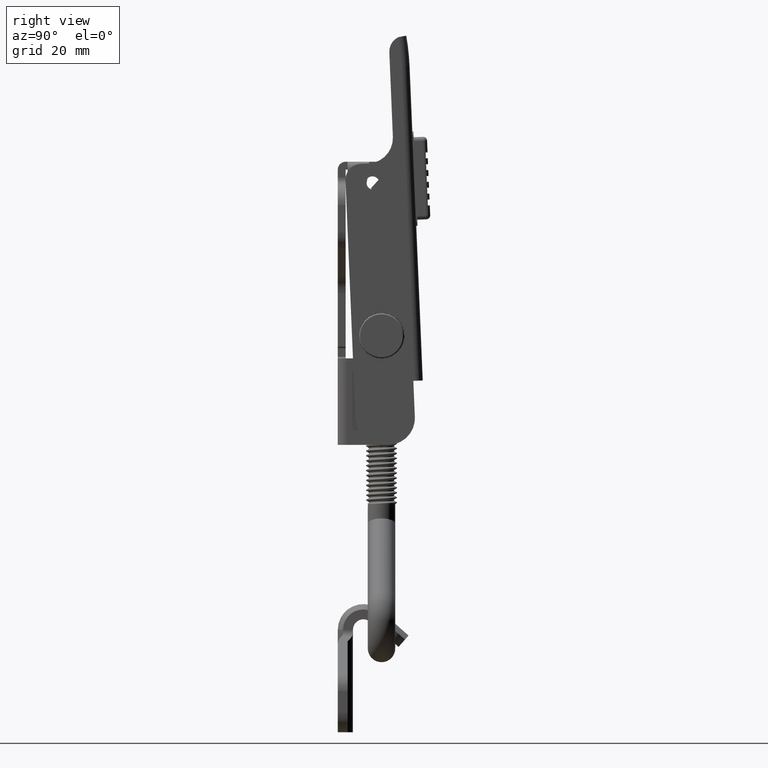
[diagram: clean part render]
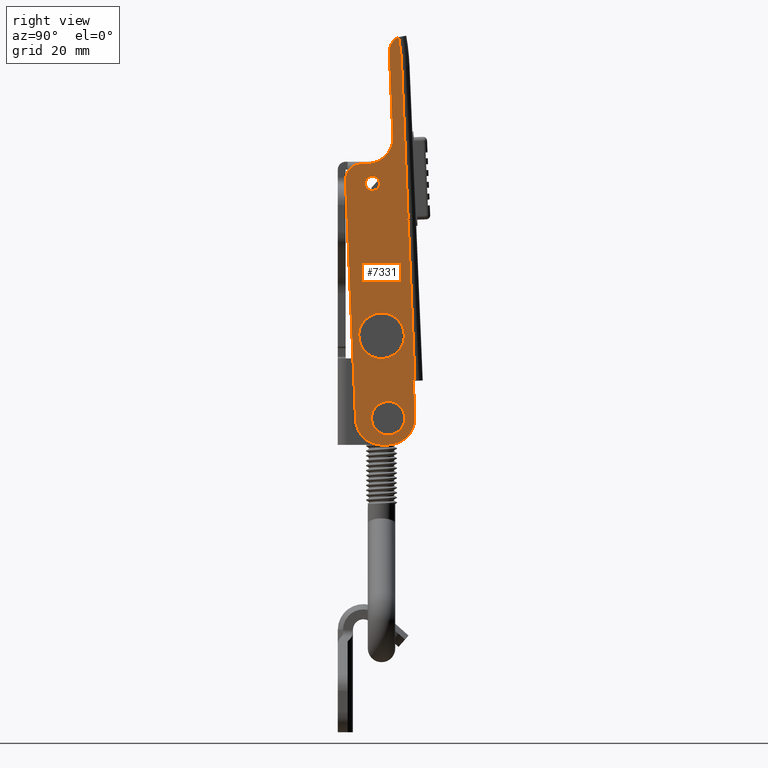
[diagram: same view with one face highlighted and labeled with its STEP entity id]
A machine part, right view. The second image highlights one B-rep face of the part: STEP entity #7331.
In plain terms, the highlighted planar face has unit normal (1, -0, 0).
Its self-contained STEP definition (entity closure, byte-faithful):
#555=PLANE('',#7910);
#956=LINE('',#33305,#1490);
#960=LINE('',#33317,#1494);
#965=LINE('',#33331,#1499);
#967=LINE('',#33337,#1501);
#968=LINE('',#33339,#1502);
#969=LINE('',#33341,#1503);
#970=LINE('',#33346,#1504);
#1490=VECTOR('',#9384,60.9);
#1494=VECTOR('',#9396,1.5);
#1499=VECTOR('',#9409,2.00000000000002);
#1501=VECTOR('',#9415,9.20000000000001);
#1502=VECTOR('',#9416,0.400000000000002);
#1503=VECTOR('',#9417,80.);
#1504=VECTOR('',#9422,21.5919007564523);
#1722=FACE_BOUND('',#2410,.T.);
#1723=FACE_BOUND('',#2411,.T.);
#1724=FACE_BOUND('',#2412,.T.);
#1997=FACE_OUTER_BOUND('',#2409,.T.);
#2409=EDGE_LOOP('',(#6224,#6225,#6226,#6227,#6228,#6229,#6230,#6231,#6232,
#6233,#6234,#6235,#6236));
#2410=EDGE_LOOP('',(#6237));
#2411=EDGE_LOOP('',(#6238));
#2412=EDGE_LOOP('',(#6239));
#2770=CIRCLE('',#7899,4.00000000000001);
#2772=CIRCLE('',#7903,6.8);
#2774=CIRCLE('',#7907,6.50000000000001);
#2776=CIRCLE('',#7911,6.8);
#2777=CIRCLE('',#7912,56.4999999999998);
#2778=CIRCLE('',#7913,4.);
#2779=CIRCLE('',#7914,5.8);
#2780=CIRCLE('',#7915,1.8);
#2781=CIRCLE('',#7916,3.6);
#3431=VERTEX_POINT('',#33295);
#3432=VERTEX_POINT('',#33296);
#3435=VERTEX_POINT('',#33304);
#3437=VERTEX_POINT('',#33310);
#3439=VERTEX_POINT('',#33316);
#3441=VERTEX_POINT('',#33322);
#3442=VERTEX_POINT('',#33323);
#3445=VERTEX_POINT('',#33334);
#3446=VERTEX_POINT('',#33336);
#3447=VERTEX_POINT('',#33338);
#3448=VERTEX_POINT('',#33340);
#3449=VERTEX_POINT('',#33342);
#3450=VERTEX_POINT('',#33344);
#3451=VERTEX_POINT('',#33347);
#3452=VERTEX_POINT('',#33349);
#3453=VERTEX_POINT('',#33351);
#4401=EDGE_CURVE('',#3431,#3432,#2770,.T.);
#4405=EDGE_CURVE('',#3435,#3431,#956,.T.);
#4408=EDGE_CURVE('',#3437,#3435,#2772,.T.);
#4411=EDGE_CURVE('',#3439,#3437,#960,.T.);
#4414=EDGE_CURVE('',#3441,#3442,#2774,.T.);
#4418=EDGE_CURVE('',#3432,#3441,#965,.T.);
#4420=EDGE_CURVE('',#3445,#3439,#2776,.T.);
#4421=EDGE_CURVE('',#3446,#3445,#967,.T.);
#4422=EDGE_CURVE('',#3446,#3447,#968,.T.);
#4423=EDGE_CURVE('',#3448,#3447,#969,.T.);
#4424=EDGE_CURVE('',#3448,#3449,#2777,.T.);
#4425=EDGE_CURVE('',#3450,#3449,#2778,.T.);
#4426=EDGE_CURVE('',#3442,#3450,#970,.T.);
#4427=EDGE_CURVE('',#3451,#3451,#2779,.T.);
#4428=EDGE_CURVE('',#3452,#3452,#2780,.T.);
#4429=EDGE_CURVE('',#3453,#3453,#2781,.T.);
#6224=ORIENTED_EDGE('',*,*,#4411,.F.);
#6225=ORIENTED_EDGE('',*,*,#4420,.F.);
#6226=ORIENTED_EDGE('',*,*,#4421,.F.);
#6227=ORIENTED_EDGE('',*,*,#4422,.T.);
#6228=ORIENTED_EDGE('',*,*,#4423,.F.);
#6229=ORIENTED_EDGE('',*,*,#4424,.T.);
#6230=ORIENTED_EDGE('',*,*,#4425,.F.);
#6231=ORIENTED_EDGE('',*,*,#4426,.F.);
#6232=ORIENTED_EDGE('',*,*,#4414,.F.);
#6233=ORIENTED_EDGE('',*,*,#4418,.F.);
#6234=ORIENTED_EDGE('',*,*,#4401,.F.);
#6235=ORIENTED_EDGE('',*,*,#4405,.F.);
#6236=ORIENTED_EDGE('',*,*,#4408,.F.);
#6237=ORIENTED_EDGE('',*,*,#4427,.F.);
#6238=ORIENTED_EDGE('',*,*,#4428,.F.);
#6239=ORIENTED_EDGE('',*,*,#4429,.F.);
#7331=ADVANCED_FACE('',(#1997,#1722,#1723,#1724),#555,.T.);
#7899=AXIS2_PLACEMENT_3D('',#33297,#9376,#9377);
#7903=AXIS2_PLACEMENT_3D('',#33311,#9389,#9390);
#7907=AXIS2_PLACEMENT_3D('',#33324,#9401,#9402);
#7910=AXIS2_PLACEMENT_3D('',#33333,#9411,#9412);
#7911=AXIS2_PLACEMENT_3D('',#33335,#9413,#9414);
#7912=AXIS2_PLACEMENT_3D('',#33343,#9418,#9419);
#7913=AXIS2_PLACEMENT_3D('',#33345,#9420,#9421);
#7914=AXIS2_PLACEMENT_3D('',#33348,#9423,#9424);
#7915=AXIS2_PLACEMENT_3D('',#33350,#9425,#9426);
#7916=AXIS2_PLACEMENT_3D('',#33352,#9427,#9428);
#9376=DIRECTION('center_axis',(-1.13948260345753E-16,-8.15032579281723E-16,
1.));
#9377=DIRECTION('ref_axis',(0.999114740185495,-0.0420682296284348,7.95604088300572E-17));
#9384=DIRECTION('',(0.999114740185495,-0.0420682296284348,6.13773460030997E-17));
#9389=DIRECTION('center_axis',(-1.13948260345753E-16,-8.15032579281723E-16,
1.));
#9390=DIRECTION('ref_axis',(0.999114740185495,-0.0420682296284349,7.95604088300571E-17));
#9396=DIRECTION('',(-0.0420682296284355,-0.999114740185495,-7.93938788340839E-16));
#9401=DIRECTION('center_axis',(1.13948260345753E-16,8.15032579281723E-16,
-1.));
#9402=DIRECTION('ref_axis',(0.999114740185495,-0.0420682296284349,7.95604088300571E-17));
#9409=DIRECTION('',(0.0420682296284349,0.999114740185495,7.93938788340839E-16));
#9411=DIRECTION('center_axis',(9.57812942536209E-17,8.15797508544076E-16,
-1.));
#9412=DIRECTION('ref_axis',(-0.999114740185495,0.0420682296284349,0.));
#9413=DIRECTION('center_axis',(-1.13948260345753E-16,-8.15032579281723E-16,
1.));
#9414=DIRECTION('ref_axis',(0.999114740185495,-0.0420682296284349,7.95604088300571E-17));
#9415=DIRECTION('',(-0.999114740185495,0.0420682296284349,-6.13773460030997E-17));
#9416=DIRECTION('',(0.0420682296284349,0.999114740185495,7.93938788340839E-16));
#9417=DIRECTION('',(-0.999114740185495,0.0420682296284349,-6.13773460030997E-17));
#9418=DIRECTION('center_axis',(-2.51138642268781E-15,-1.75752058266388E-14,
-1.));
#9419=DIRECTION('ref_axis',(0.174321794877608,0.984688738551756,-1.77438966440546E-14));
#9420=DIRECTION('center_axis',(-1.13948260345753E-16,-8.15032579281723E-16,
1.));
#9421=DIRECTION('ref_axis',(0.999114740185495,-0.0420682296284349,7.95604088300571E-17));
#9422=DIRECTION('',(0.999114740185495,-0.0420682296284349,6.13773460030997E-17));
#9423=DIRECTION('center_axis',(1.13948260345753E-16,8.15032579281723E-16,
-1.));
#9424=DIRECTION('ref_axis',(-0.999114740185495,0.0420682296284349,-7.95604088300571E-17));
#9425=DIRECTION('center_axis',(1.13948260345753E-16,8.15032579281723E-16,
-1.));
#9426=DIRECTION('ref_axis',(-0.999114740185495,0.042068229628435,-7.9560408830057E-17));
#9427=DIRECTION('center_axis',(1.13948260345753E-16,8.15032579281723E-16,
-1.));
#9428=DIRECTION('ref_axis',(-0.999114740185495,0.0420682296284349,-7.95604088300571E-17));
#33295=CARTESIAN_POINT('',(60.4969213713806,-10.8546075279113,-12.5));
#33296=CARTESIAN_POINT('',(64.6616532506363,-7.02642148568303,-12.5));
#33297=CARTESIAN_POINT('Origin',(60.6651942898944,-6.85814856716929,-12.5));
#33304=CARTESIAN_POINT('',(-0.349166305916009,-8.2926523435396,-12.5));
#33305=CARTESIAN_POINT('',(-0.349166305916009,-8.2926523435396,-12.5));
#33310=CARTESIAN_POINT('',(-6.85708257770402,-1.21260814880488,-12.5));
#33311=CARTESIAN_POINT('Origin',(-0.0631023444426503,-1.49867211027823,
-12.5));
#33316=CARTESIAN_POINT('',(-6.79398023326137,0.286063961473362,-12.5));
#33317=CARTESIAN_POINT('',(-6.79398023326137,0.286063961473362,-12.5));
#33322=CARTESIAN_POINT('',(64.7457897098932,-5.02819200531202,-12.5));
#33323=CARTESIAN_POINT('',(71.5134790136838,1.19261031330884,-12.5));
#33324=CARTESIAN_POINT('Origin',(71.2400355210989,-5.30163549789688,-12.5));
#33331=CARTESIAN_POINT('',(64.724755595079,-5.5277493754048,-12.5));
#33333=CARTESIAN_POINT('Origin',(1.42435325432191E-15,1.01879072410215E-14,
-12.5));
#33334=CARTESIAN_POINT('',(0.286063961473347,6.79398023326138,-12.5));
#33335=CARTESIAN_POINT('Origin',(1.42435325432191E-15,1.01879072410215E-14,
-12.5));
#33336=CARTESIAN_POINT('',(9.47791957117991,6.40695252067978,-12.5));
#33337=CARTESIAN_POINT('',(0.286063961473336,6.79398023326138,-12.5));
#33338=CARTESIAN_POINT('',(9.49474686303129,6.80659841675398,-12.5));
#33339=CARTESIAN_POINT('',(9.19185560970656,-0.387027712581591,-12.5));
#33340=CARTESIAN_POINT('',(89.4239260778709,3.44114004647919,-12.5));
#33341=CARTESIAN_POINT('',(9.49474686303129,6.80659841675398,-12.5));
#33342=CARTESIAN_POINT('',(96.896252514448,2.62607095417316,-12.5));
#33343=CARTESIAN_POINT('Origin',(87.0470711038631,-53.0088427740009,-12.499999999999));
#33344=CARTESIAN_POINT('',(93.0862653280776,0.284277274172032,-12.5));
#33345=CARTESIAN_POINT('Origin',(93.2545382465913,4.28073623491401,-12.5));
#33346=CARTESIAN_POINT('',(59.1244562353837,1.71425636070143,-12.5));
#33347=CARTESIAN_POINT('',(15.1528894671168,-1.4387288825006,-12.5));
#33348=CARTESIAN_POINT('Origin',(20.9477549601927,-1.68272461434552,-12.5));
#33349=CARTESIAN_POINT('',(57.885552586316,-3.93862942872746,-12.5));
#33350=CARTESIAN_POINT('Origin',(59.6839591186499,-4.01435224205864,-12.5));
#33351=CARTESIAN_POINT('',(-3.59681306466778,0.151445626662375,-12.5));
#33352=CARTESIAN_POINT('Origin',(1.42435325432191E-15,1.01879072410215E-14,
-12.5));